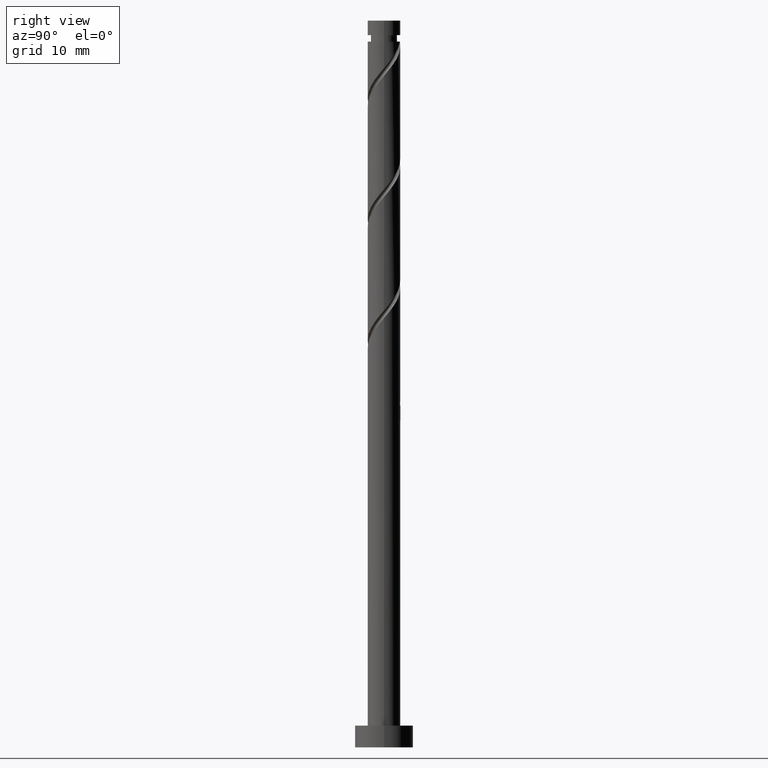
[diagram: clean part render]
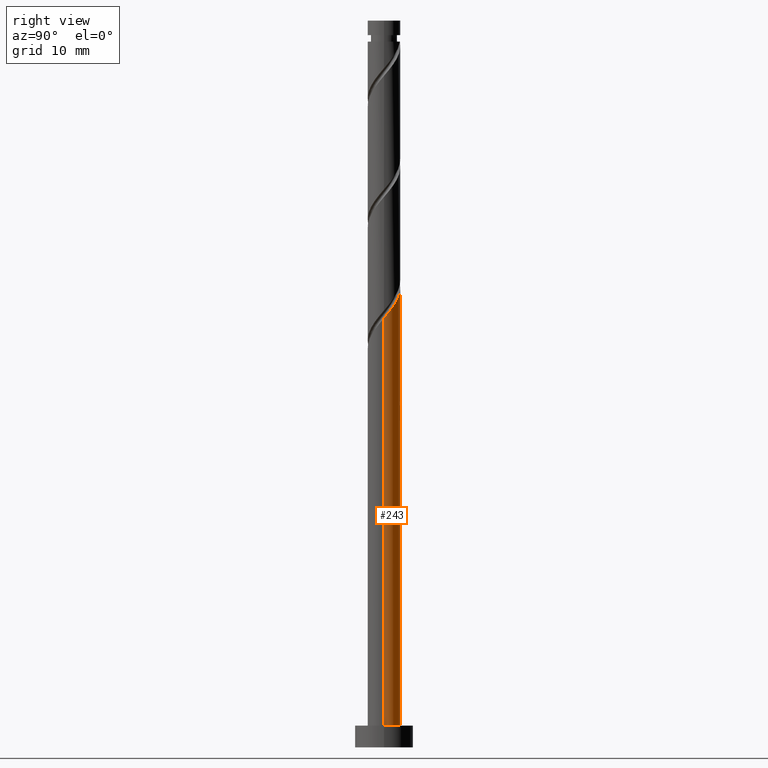
[diagram: same view with one face highlighted and labeled with its STEP entity id]
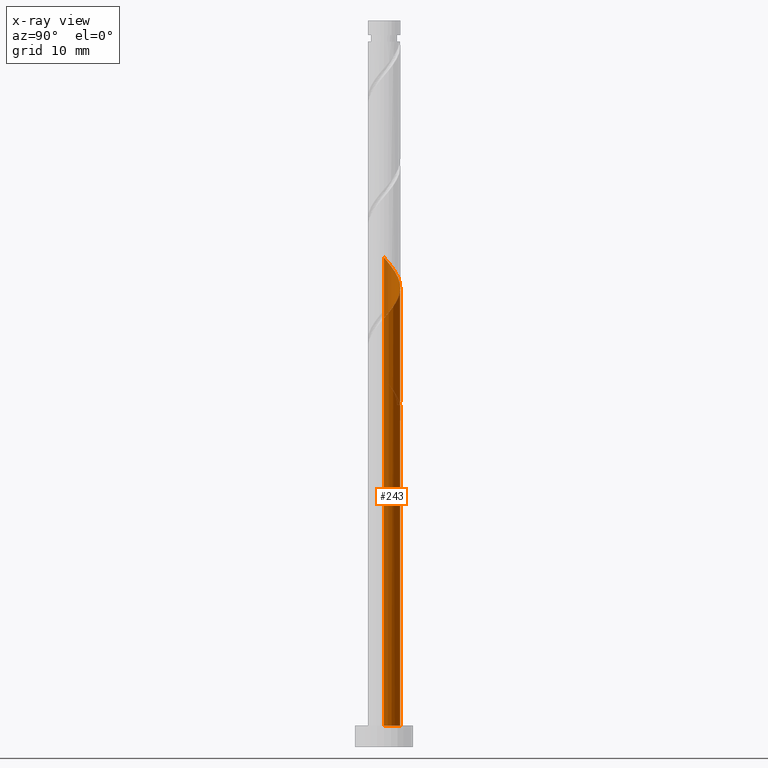
[diagram: x-ray of the same camera — body ghosted, the highlighted face saturated]
A machine part, right view. The second image highlights one B-rep face of the part: STEP entity #243.
The next image is the same camera in x-ray: the body ghosted, the highlighted face saturated — about 0% of this face is hidden behind the body in this view.
In plain terms, the highlighted cylindrical surface (edge-blend (fillet) strip) has radius 2.25 mm, axis along (-0, -0, -1).
Its self-contained STEP definition (entity closure, byte-faithful):
#38 = CYLINDRICAL_SURFACE ( 'NONE', #156, 2.250000000000000000 ) ;
#49 = CARTESIAN_POINT ( 'NONE',  ( -2.239015679208066878, 0.4546515249585260099, 51.26493375707958222 ) ) ;
#57 = EDGE_CURVE ( 'NONE', #959, #1054, #1087, .T. ) ;
#72 = CARTESIAN_POINT ( 'NONE',  ( 0.4477443466979801889, 2.204999999999999627, 47.09826709041291082 ) ) ;
#77 = DIRECTION ( 'NONE',  ( -1.000000000000000000, 0.000000000000000000, 0.000000000000000000 ) ) ;
#117 = VERTEX_POINT ( 'NONE', #403 ) ;
#128 = CIRCLE ( 'NONE', #327, 2.250000000000000000 ) ;
#143 = ORIENTED_EDGE ( 'NONE', *, *, #934, .F. ) ;
#145 = LINE ( 'NONE', #264, #967 ) ;
#156 = AXIS2_PLACEMENT_3D ( 'NONE', #853, #522, #1292 ) ;
#161 = CARTESIAN_POINT ( 'NONE',  ( -2.250000000000000000, 0.000000000000000000, 100.0000000000000000 ) ) ;
#182 = CARTESIAN_POINT ( 'NONE',  ( 1.685713841995698958, 1.490257978641319037, 60.98715597930181076 ) ) ;
#217 = CARTESIAN_POINT ( 'NONE',  ( -2.250000000000000000, 0.000000000000000000, 100.0000000000000000 ) ) ;
#231 = VECTOR ( 'NONE', #724, 1000.000000000000000 ) ;
#235 = DIRECTION ( 'NONE',  ( -0.000000000000000000, -0.000000000000000000, -1.000000000000000000 ) ) ;
#243 = ADVANCED_FACE ( 'NONE', ( #276 ), #38, .T. ) ;
#264 = CARTESIAN_POINT ( 'NONE',  ( 2.250000000000000000, 2.755455298081543792E-16, 100.0000000000000000 ) ) ;
#276 = FACE_OUTER_BOUND ( 'NONE', #931, .T. ) ;
#284 = VERTEX_POINT ( 'NONE', #1203 ) ;
#285 = EDGE_CURVE ( 'NONE', #117, #1024, #520, .T. ) ;
#289 = CARTESIAN_POINT ( 'NONE',  ( -2.250000000000002665, 8.963379928136229465E-16, 67.40074553542417846 ) ) ;
#301 = CARTESIAN_POINT ( 'NONE',  ( 0.000000000000000000, 0.000000000000000000, 47.09826709041291792 ) ) ;
#304 = CARTESIAN_POINT ( 'NONE',  ( -1.074354610632894280, 1.976932515442001437, 48.95011894226477978 ) ) ;
#324 = CARTESIAN_POINT ( 'NONE',  ( 0.05894335423581447547, 2.283949408782537827, 47.56123005337586562 ) ) ;
#327 = AXIS2_PLACEMENT_3D ( 'NONE', #301, #884, #77 ) ;
#340 = EDGE_CURVE ( 'NONE', #1024, #959, #1239, .T. ) ;
#365 = ORIENTED_EDGE ( 'NONE', *, *, #655, .F. ) ;
#379 = CARTESIAN_POINT ( 'NONE',  ( -2.249999999999999556, -3.361267473051105278E-16, 51.79578864540166450 ) ) ;
#403 = CARTESIAN_POINT ( 'NONE',  ( 2.250000000000002665, -9.038074760870697025E-16, 59.06741220209084986 ) ) ;
#410 = VERTEX_POINT ( 'NONE', #1250 ) ;
#421 = CARTESIAN_POINT ( 'NONE',  ( 2.093751105527146716, 0.8238363357511376828, 60.06123005337587273 ) ) ;
#427 = CARTESIAN_POINT ( 'NONE',  ( 1.948486531846223446, 1.193021146543749689, 60.52419301633883464 ) ) ;
#435 = CARTESIAN_POINT ( 'NONE',  ( 0.7257680691206175316, 2.166370220145120928, 62.37604486819069649 ) ) ;
#453 = CARTESIAN_POINT ( 'NONE',  ( -1.760338748084745220, 1.401323478712693138, 65.61678560893143697 ) ) ;
#463 = CARTESIAN_POINT ( 'NONE',  ( -2.250000000000002220, 8.963379928136229465E-16, 50.73407886875749995 ) ) ;
#471 = CARTESIAN_POINT ( 'NONE',  ( -1.760338748084745220, 1.401323478712693138, 48.95011894226475846 ) ) ;
#493 = CARTESIAN_POINT ( 'NONE',  ( -2.249999999999999556, 0.02902876724704770567, 51.76177127146929990 ) ) ;
#520 =( BOUNDED_CURVE ( )  B_SPLINE_CURVE ( 2, ( #654, #1106, #992, #1446, #421, #427, #182, #777, #885, #435, #891, #1257, #927, #1121, #1369, #1039, #453, #1245, #906, #687, #1155 ),
 .UNSPECIFIED., .F., .T. ) 
 B_SPLINE_CURVE_WITH_KNOTS ( ( 3, 2, 2, 2, 2, 2, 2, 2, 2, 2, 3 ),
 ( 0.1795248053855292569, 0.1805555555555555802, 0.1944444444444444198, 0.2083333333333333703, 0.2222222222222222099, 0.2361111111111111605, 0.2500000000000000000, 0.2638888888888888395, 0.2777777777777777901, 0.2916666666666666297, 0.3045248053855292847 ),
 .UNSPECIFIED. ) 
 CURVE ( )  GEOMETRIC_REPRESENTATION_ITEM ( )  RATIONAL_B_SPLINE_CURVE ( ( 0.9071930855141258077, 0.9080659294509733082, 0.9090909090909131685, 0.8952797754656477425, 0.9090909090909131685, 0.8952797754656477425, 0.9090909090909131685, 0.8952797754656477425, 0.9090909090909131685, 0.8952797754656477425, 0.9090909090909131685, 0.8952797754656477425, 0.9090909090909131685, 0.8952797754656477425, 0.9090909090909131685, 0.8952797754656477425, 0.9090909090909131685, 0.8952797754656477425, 0.9090909090909131685, 0.8963047551055876028, 0.9071930855141258077 ) ) 
 REPRESENTATION_ITEM ( '' )  );
#522 = DIRECTION ( 'NONE',  ( -0.000000000000000000, -0.000000000000000000, -1.000000000000000000 ) ) ;
#525 = CARTESIAN_POINT ( 'NONE',  ( -0.3334123574424004421, 2.225159814463828045, 48.02419301633884174 ) ) ;
#556 = CARTESIAN_POINT ( 'NONE',  ( -2.133458188693679425, 0.7147420213586835880, 49.87604486819070360 ) ) ;
#595 = CARTESIAN_POINT ( 'NONE',  ( -2.249251085256692484, 0.05804787223997515816, 51.72789672004254413 ) ) ;
#605 = VERTEX_POINT ( 'NONE', #717 ) ;
#614 =( BOUNDED_CURVE ( )  B_SPLINE_CURVE ( 2, ( #1161, #1169, #835, #1017, #471, #822, #556, #1262, #463 ),
 .UNSPECIFIED., .F., .T. ) 
 B_SPLINE_CURVE_WITH_KNOTS ( ( 3, 2, 2, 2, 3 ),
 ( 0.000000000000000000, 0.01388888888888883955, 0.02777777777777779011, 0.04166666666666662966, 0.05452480538552915285 ),
 .UNSPECIFIED. ) 
 CURVE ( )  GEOMETRIC_REPRESENTATION_ITEM ( )  RATIONAL_B_SPLINE_CURVE ( ( 0.9090909090909131685, 0.8952797754656477425, 0.9090909090909131685, 0.8952797754656477425, 0.9090909090909131685, 0.8952797754656477425, 0.9090909090909131685, 0.8963047551055877138, 0.9071930855141255856 ) ) 
 REPRESENTATION_ITEM ( '' )  );
#654 = CARTESIAN_POINT ( 'NONE',  ( 2.250000000000002665, -9.038074760870697025E-16, 59.06741220209084986 ) ) ;
#655 = EDGE_CURVE ( 'NONE', #605, #410, #1290, .T. ) ;
#664 = EDGE_CURVE ( 'NONE', #117, #990, #145, .T. ) ;
#687 = CARTESIAN_POINT ( 'NONE',  ( -2.250000000000005329, 0.3668723365960216976, 66.97082602305854948 ) ) ;
#717 = CARTESIAN_POINT ( 'NONE',  ( -2.250000000000002665, 8.963379928136229465E-16, 50.73407886875750705 ) ) ;
#724 = DIRECTION ( 'NONE',  ( -0.000000000000000000, -0.000000000000000000, -1.000000000000000000 ) ) ;
#756 = CARTESIAN_POINT ( 'NONE',  ( 2.250000000000000000, 2.755455298081543792E-16, 3.000000000000000000 ) ) ;
#762 = CARTESIAN_POINT ( 'NONE',  ( 0.4477443466979801889, 2.204999999999999627, 47.09826709041291082 ) ) ;
#777 = CARTESIAN_POINT ( 'NONE',  ( 1.422941152145175359, 1.787494810738887052, 61.45011894226475846 ) ) ;
#780 = CARTESIAN_POINT ( 'NONE',  ( -0.7257680691206154222, 2.166370220145118708, 48.48715597930180365 ) ) ;
#822 = CARTESIAN_POINT ( 'NONE',  ( -2.007429886082036763, 1.090928262238790580, 49.41308190522772747 ) ) ;
#833 = EDGE_CURVE ( 'NONE', #284, #1054, #128, .T. ) ;
#835 = CARTESIAN_POINT ( 'NONE',  ( -1.174896474623799092, 1.918884643202029006, 48.02419301633884885 ) ) ;
#842 = CARTESIAN_POINT ( 'NONE',  ( -2.093751105527143608, 0.8238363357511380158, 50.80197079411660610 ) ) ;
#853 = CARTESIAN_POINT ( 'NONE',  ( 0.000000000000000000, 0.000000000000000000, 100.0000000000000000 ) ) ;
#868 = ORIENTED_EDGE ( 'NONE', *, *, #57, .F. ) ;
#884 = DIRECTION ( 'NONE',  ( 0.000000000000000000, -0.000000000000000000, -1.000000000000000000 ) ) ;
#885 = CARTESIAN_POINT ( 'NONE',  ( 1.074354610632896723, 1.976932515442004101, 61.91308190522772037 ) ) ;
#891 = CARTESIAN_POINT ( 'NONE',  ( 0.3334123574424028846, 2.225159814463832042, 62.83900783115365130 ) ) ;
#906 = CARTESIAN_POINT ( 'NONE',  ( -2.133458188693679425, 0.7147420213586835880, 66.54271153485734658 ) ) ;
#927 = CARTESIAN_POINT ( 'NONE',  ( -0.4477443466979794118, 2.205000000000002736, 63.76493375707959643 ) ) ;
#931 = EDGE_LOOP ( 'NONE', ( #1193, #1003, #1392, #365, #143, #1320, #868, #1276 ) ) ;
#934 = EDGE_CURVE ( 'NONE', #284, #605, #614, .T. ) ;
#949 = DIRECTION ( 'NONE',  ( 1.000000000000000000, 0.000000000000000000, 0.000000000000000000 ) ) ;
#959 = VERTEX_POINT ( 'NONE', #379 ) ;
#963 = CARTESIAN_POINT ( 'NONE',  ( -1.685713841995696738, 1.490257978641317482, 49.87604486819069649 ) ) ;
#967 = VECTOR ( 'NONE', #1395, 1000.000000000000000 ) ;
#971 = CARTESIAN_POINT ( 'NONE',  ( -1.422941152145173360, 1.787494810738884832, 49.41308190522771326 ) ) ;
#972 = DIRECTION ( 'NONE',  ( 0.000000000000000000, 0.000000000000000000, 1.000000000000000000 ) ) ;
#990 = VERTEX_POINT ( 'NONE', #756 ) ;
#992 = CARTESIAN_POINT ( 'NONE',  ( 2.249251085256695593, 0.05804787223997486673, 59.13530412744996312 ) ) ;
#1003 = ORIENTED_EDGE ( 'NONE', *, *, #664, .T. ) ;
#1017 = CARTESIAN_POINT ( 'NONE',  ( -1.513247610087453010, 1.711718695186594807, 48.48715597930181076 ) ) ;
#1024 = VERTEX_POINT ( 'NONE', #289 ) ;
#1039 = CARTESIAN_POINT ( 'NONE',  ( -1.513247610087453010, 1.711718695186594807, 65.15382264596846085 ) ) ;
#1051 = CARTESIAN_POINT ( 'NONE',  ( -1.948486531846220116, 1.193021146543749911, 50.33900783115364419 ) ) ;
#1054 = VERTEX_POINT ( 'NONE', #762 ) ;
#1061 = EDGE_CURVE ( 'NONE', #990, #410, #1279, .T. ) ;
#1079 = CARTESIAN_POINT ( 'NONE',  ( -2.249999999999999556, -3.361267473051105278E-16, 51.79578864540166450 ) ) ;
#1087 =( BOUNDED_CURVE ( )  B_SPLINE_CURVE ( 2, ( #1079, #493, #595, #49, #842, #1051, #963, #971, #304, #780, #525, #324, #72 ),
 .UNSPECIFIED., .F., .T. ) 
 B_SPLINE_CURVE_WITH_KNOTS ( ( 3, 2, 2, 2, 2, 2, 3 ),
 ( 0.9295248053855290626, 0.9305555555555555802, 0.9444444444444444198, 0.9583333333333333703, 0.9722222222222222099, 0.9861111111111111605, 1.000000000000000000 ),
 .UNSPECIFIED. ) 
 CURVE ( )  GEOMETRIC_REPRESENTATION_ITEM ( )  RATIONAL_B_SPLINE_CURVE ( ( 0.9071930855141199235, 0.9080659294509675350, 0.9090909090909076173, 0.8952797754656421914, 0.9090909090909076173, 0.8952797754656421914, 0.9090909090909076173, 0.8952797754656421914, 0.9090909090909076173, 0.8952797754656421914, 0.9090909090909076173, 0.8952797754656421914, 0.9090909090909076173 ) ) 
 REPRESENTATION_ITEM ( '' )  );
#1106 = CARTESIAN_POINT ( 'NONE',  ( 2.250000000000002220, 0.02902876724705275718, 59.10142957602320735 ) ) ;
#1121 = CARTESIAN_POINT ( 'NONE',  ( -0.8365453391601459510, 2.126050591217462760, 64.22789672004253703 ) ) ;
#1155 = CARTESIAN_POINT ( 'NONE',  ( -2.250000000000002665, 8.963379928136229465E-16, 67.40074553542417846 ) ) ;
#1161 = CARTESIAN_POINT ( 'NONE',  ( -0.4477443466979793563, 2.205000000000002736, 47.09826709041290371 ) ) ;
#1169 = CARTESIAN_POINT ( 'NONE',  ( -0.8365453391601459510, 2.126050591217462760, 47.56123005337585852 ) ) ;
#1193 = ORIENTED_EDGE ( 'NONE', *, *, #285, .F. ) ;
#1203 = CARTESIAN_POINT ( 'NONE',  ( -0.4477443466979793563, 2.205000000000002736, 47.09826709041291082 ) ) ;
#1239 = LINE ( 'NONE', #217, #1370 ) ;
#1245 = CARTESIAN_POINT ( 'NONE',  ( -2.007429886082036763, 1.090928262238790580, 66.07974857189439888 ) ) ;
#1250 = CARTESIAN_POINT ( 'NONE',  ( -2.250000000000000000, 0.000000000000000000, 3.000000000000000000 ) ) ;
#1257 = CARTESIAN_POINT ( 'NONE',  ( -0.05894335423581414241, 2.283949408782541379, 63.30197079411662742 ) ) ;
#1262 = CARTESIAN_POINT ( 'NONE',  ( -2.250000000000003997, 0.3668723365960253058, 50.30415935639187097 ) ) ;
#1276 = ORIENTED_EDGE ( 'NONE', *, *, #340, .F. ) ;
#1279 = CIRCLE ( 'NONE', #1373, 2.250000000000000000 ) ;
#1290 = LINE ( 'NONE', #161, #231 ) ;
#1292 = DIRECTION ( 'NONE',  ( -1.000000000000000000, 0.000000000000000000, 0.000000000000000000 ) ) ;
#1320 = ORIENTED_EDGE ( 'NONE', *, *, #833, .T. ) ;
#1369 = CARTESIAN_POINT ( 'NONE',  ( -1.174896474623799092, 1.918884643202029006, 64.69085968300549894 ) ) ;
#1370 = VECTOR ( 'NONE', #235, 1000.000000000000000 ) ;
#1373 = AXIS2_PLACEMENT_3D ( 'NONE', #1421, #972, #949 ) ;
#1392 = ORIENTED_EDGE ( 'NONE', *, *, #1061, .T. ) ;
#1395 = DIRECTION ( 'NONE',  ( -0.000000000000000000, -0.000000000000000000, -1.000000000000000000 ) ) ;
#1421 = CARTESIAN_POINT ( 'NONE',  ( 0.000000000000000000, 0.000000000000000000, 3.000000000000000000 ) ) ;
#1446 = CARTESIAN_POINT ( 'NONE',  ( 2.239015679208069987, 0.4546515249585257323, 59.59826709041291082 ) ) ;